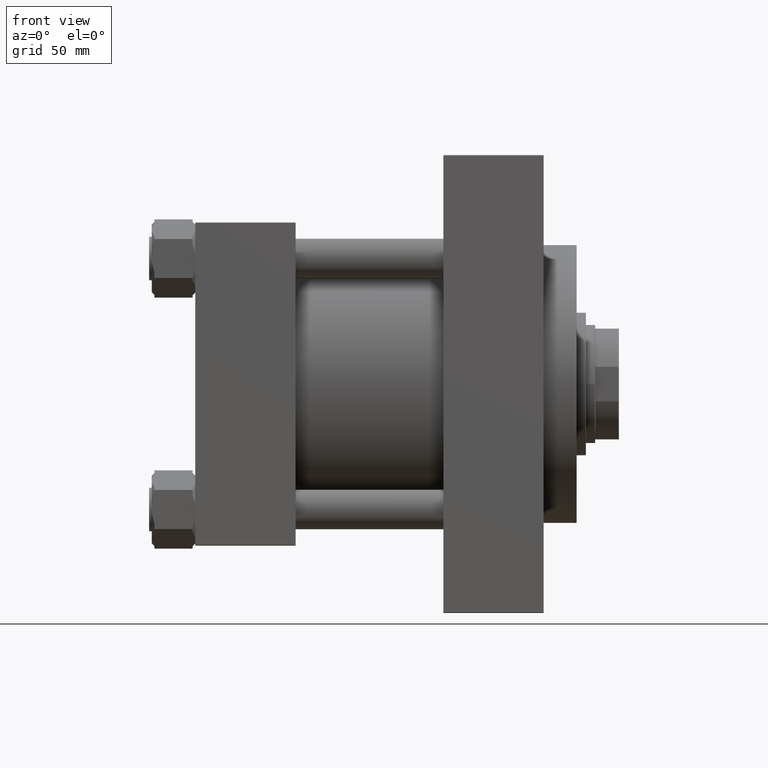
[diagram: clean part render]
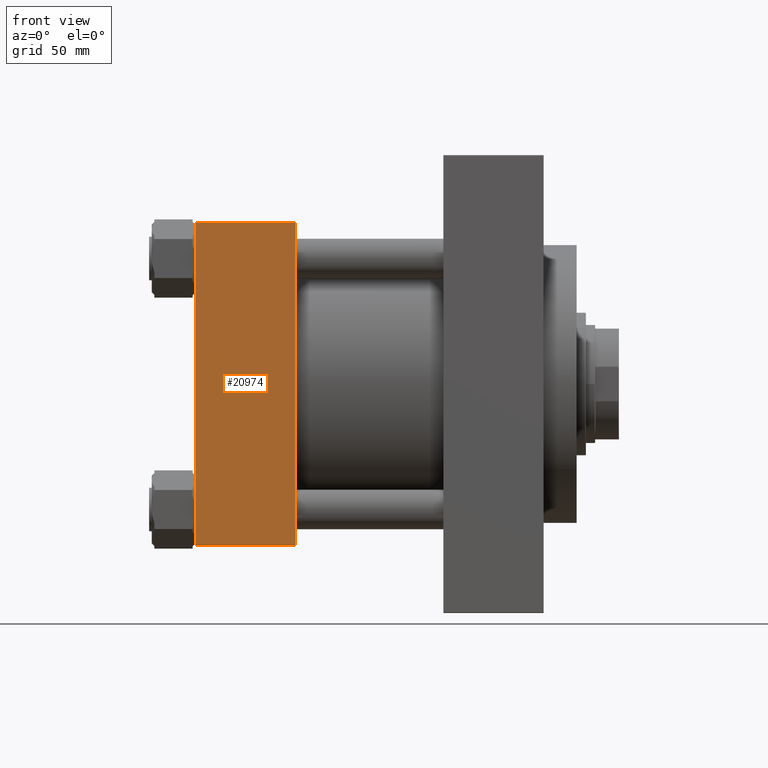
[diagram: same view with one face highlighted and labeled with its STEP entity id]
A machine part, front view. The second image highlights one B-rep face of the part: STEP entity #20974.
In plain terms, the highlighted planar face has unit normal (0, 1, 0).
Its self-contained STEP definition (entity closure, byte-faithful):
#807 = FACE_OUTER_BOUND ( 'NONE', #43910, .T. ) ;
#3191 = CARTESIAN_POINT ( 'NONE',  ( 76.00000000000000000, -122.5000000000000000, -121.9999999999999289 ) ) ;
#3797 = VERTEX_POINT ( 'NONE', #6871 ) ;
#3893 = DIRECTION ( 'NONE',  ( 1.000000000000000000, 0.000000000000000000, 0.000000000000000000 ) ) ;
#6871 = CARTESIAN_POINT ( 'NONE',  ( 76.00000000000000000, -122.5000000000000000, 121.9999999999999858 ) ) ;
#8490 = VECTOR ( 'NONE', #46669, 1000.000000000000000 ) ;
#8774 = AXIS2_PLACEMENT_3D ( 'NONE', #15950, #38118, #15488 ) ;
#9573 = LINE ( 'NONE', #31980, #8490 ) ;
#9578 = DIRECTION ( 'NONE',  ( 0.000000000000000000, 0.000000000000000000, -1.000000000000000000 ) ) ;
#11483 = ORIENTED_EDGE ( 'NONE', *, *, #38570, .F. ) ;
#12376 = LINE ( 'NONE', #12854, #23722 ) ;
#12645 = EDGE_CURVE ( 'NONE', #22763, #30557, #14490, .T. ) ;
#12854 = CARTESIAN_POINT ( 'NONE',  ( 76.00000000000000000, -122.5000000000000000, 121.9999999999999858 ) ) ;
#13435 = LINE ( 'NONE', #42821, #40476 ) ;
#14490 = LINE ( 'NONE', #3191, #20925 ) ;
#15488 = DIRECTION ( 'NONE',  ( 0.000000000000000000, -0.000000000000000000, 1.000000000000000000 ) ) ;
#15950 = CARTESIAN_POINT ( 'NONE',  ( 76.00000000000000000, -122.5000000000000000, 122.4999999999999858 ) ) ;
#19877 = VERTEX_POINT ( 'NONE', #39106 ) ;
#20925 = VECTOR ( 'NONE', #3893, 1000.000000000000000 ) ;
#20974 = ADVANCED_FACE ( 'NONE', ( #807 ), #34271, .F. ) ;
#21092 = ORIENTED_EDGE ( 'NONE', *, *, #30799, .T. ) ;
#22763 = VERTEX_POINT ( 'NONE', #42832 ) ;
#22985 = DIRECTION ( 'NONE',  ( -1.000000000000000000, 0.000000000000000000, 0.000000000000000000 ) ) ;
#23722 = VECTOR ( 'NONE', #22985, 1000.000000000000000 ) ;
#25272 = EDGE_CURVE ( 'NONE', #19877, #22763, #13435, .T. ) ;
#30557 = VERTEX_POINT ( 'NONE', #32664 ) ;
#30799 = EDGE_CURVE ( 'NONE', #3797, #19877, #12376, .T. ) ;
#31980 = CARTESIAN_POINT ( 'NONE',  ( 76.00000000000000000, -122.5000000000000000, 122.4999999999999858 ) ) ;
#32664 = CARTESIAN_POINT ( 'NONE',  ( 76.00000000000000000, -122.5000000000000000, -121.9999999999999289 ) ) ;
#34271 = PLANE ( 'NONE',  #8774 ) ;
#38118 = DIRECTION ( 'NONE',  ( -0.000000000000000000, 1.000000000000000000, 0.000000000000000000 ) ) ;
#38570 = EDGE_CURVE ( 'NONE', #3797, #30557, #9573, .T. ) ;
#39106 = CARTESIAN_POINT ( 'NONE',  ( 0.000000000000000000, -122.5000000000000000, 121.9999999999999858 ) ) ;
#40476 = VECTOR ( 'NONE', #9578, 1000.000000000000000 ) ;
#42295 = ORIENTED_EDGE ( 'NONE', *, *, #12645, .T. ) ;
#42821 = CARTESIAN_POINT ( 'NONE',  ( 0.000000000000000000, -122.5000000000000000, 122.4999999999999858 ) ) ;
#42832 = CARTESIAN_POINT ( 'NONE',  ( 0.000000000000000000, -122.5000000000000000, -121.9999999999999289 ) ) ;
#43910 = EDGE_LOOP ( 'NONE', ( #46348, #42295, #11483, #21092 ) ) ;
#46348 = ORIENTED_EDGE ( 'NONE', *, *, #25272, .T. ) ;
#46669 = DIRECTION ( 'NONE',  ( 0.000000000000000000, 0.000000000000000000, -1.000000000000000000 ) ) ;